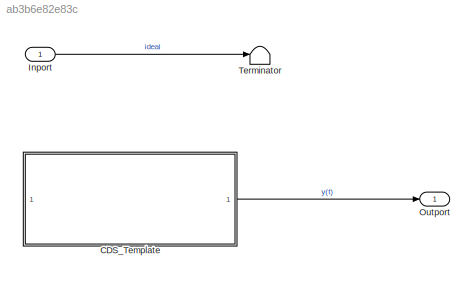
MODEL slx_ab3b6e82e83c
KIND model
CONFIG AbsTol = auto
CONFIG EnableMultiTasking = off
CONFIG FixedStep = auto
CONFIG MaxStep = auto
CONFIG MinStep = auto
CONFIG RelTol = 1e-3
CONFIG SampleTimeConstraint = Unconstrained
CONFIG SolverName = VariableStepAuto
CONFIG StartTime = 0.0
CONFIG StopTime = 10
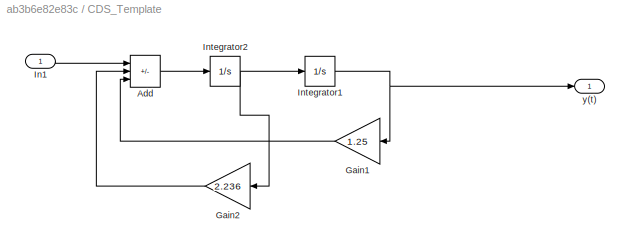
BLOCK [SubSystem] CDS_Template
BLOCK [Sum] CDS_Template/Add
  IconShape = rectangular
  Inputs = +--
BLOCK [Gain] CDS_Template/Gain1
  Gain = 1.25
  NameLocation = top
BLOCK [Gain] CDS_Template/Gain2
  Gain = 2.236
  NameLocation = top
BLOCK [Inport] CDS_Template/In1
BLOCK [Integrator] CDS_Template/Integrator1
BLOCK [Integrator] CDS_Template/Integrator2
BLOCK [Outport] CDS_Template/y(t)
BLOCK [Inport] Inport
BLOCK [Outport] Outport
BLOCK [Terminator] Terminator
LINE CDS_Template/Add:1 -> CDS_Template/Integrator2:1
LINE CDS_Template/Gain1:1 -> CDS_Template/Add:3
LINE CDS_Template/Gain2:1 -> CDS_Template/Add:2
LINE CDS_Template/In1:1 -> CDS_Template/Add:1
NET CDS_Template/Integrator1:1 -> CDS_Template/Gain1:1, CDS_Template/y(t):1
NET CDS_Template/Integrator2:1 -> CDS_Template/Gain2:1, CDS_Template/Integrator1:1
LINE CDS_Template:1 -> Outport:1
LINE Inport:1 -> Terminator:1
note: NET lines group one-source signal fan-out (src -> all destinations, sorted); 1:1 wires keep LINE
